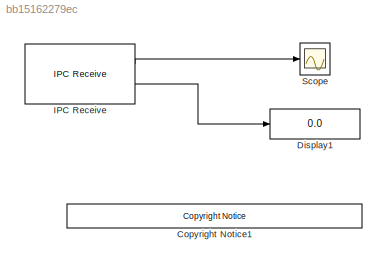
MODEL slx_bb15162279ec
KIND model
CONFIG AbsTol = auto
CONFIG EnableMultiTasking = on
CONFIG FixedStep = 0.2
CONFIG MaxStep = auto
CONFIG MinStep = auto
CONFIG RelTol = 1e-3
CONFIG SampleTimeConstraint = Unconstrained
CONFIG SolverName = FixedStepDiscrete
CONFIG StartTime = 0.0
CONFIG StopTime = Inf
BLOCK [Reference] <copyright redacted>
  Ports = []
  SourceBlock = demo_controls/<copyright redacted>
  SourceProductBaseCode = ME
  SourceType = <copyright redacted>
BLOCK [Display] Display1
  Decimation = 1
  Ports = [1]
BLOCK [Reference] IPC Receive  REF=c2837xDlib/IPC Receive
  Ports = [0, 2]
  SourceBlock = c2837xDlib/IPC Receive
  SourceProductBaseCode = TIC2000
  SourceType = C28x IPC Receive
BLOCK [Scope] Scope
  Floating = off
  NumInputPorts = 1
  Ports = [1]
  ScopeSpecificationString = Simulink.scopes.TimeScopeBlockCfg('CurrentConfiguration', extmgr.ConfigurationSet(extmgr.Configuration('Core','General UI',true),extmgr.Configuration('Core','Source UI',true),extmgr.Configuration('Sources','WiredSimulink',true),extmgr.Configuration('Visuals','Time Domain',true,'SerializedDisplays',{struct('MinYLimReal','-8037.00000','MaxYLimReal','72753.00000','YLabelReal','','MinYLimMag','  0.000...<+1584ch>
LINE IPC Receive:1 -> Scope:1
LINE IPC Receive:2 -> Display1:1
